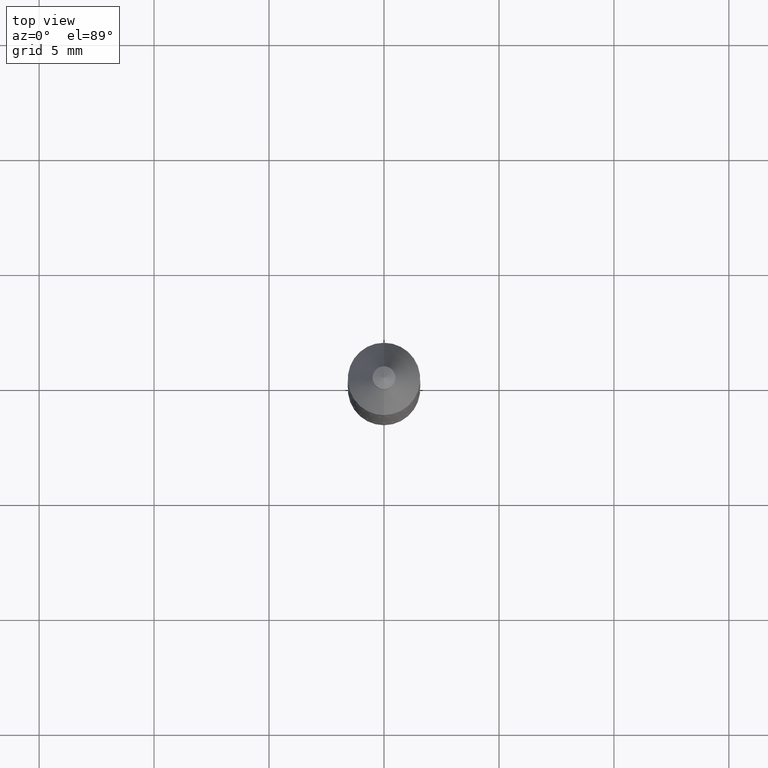
[diagram: clean part render]
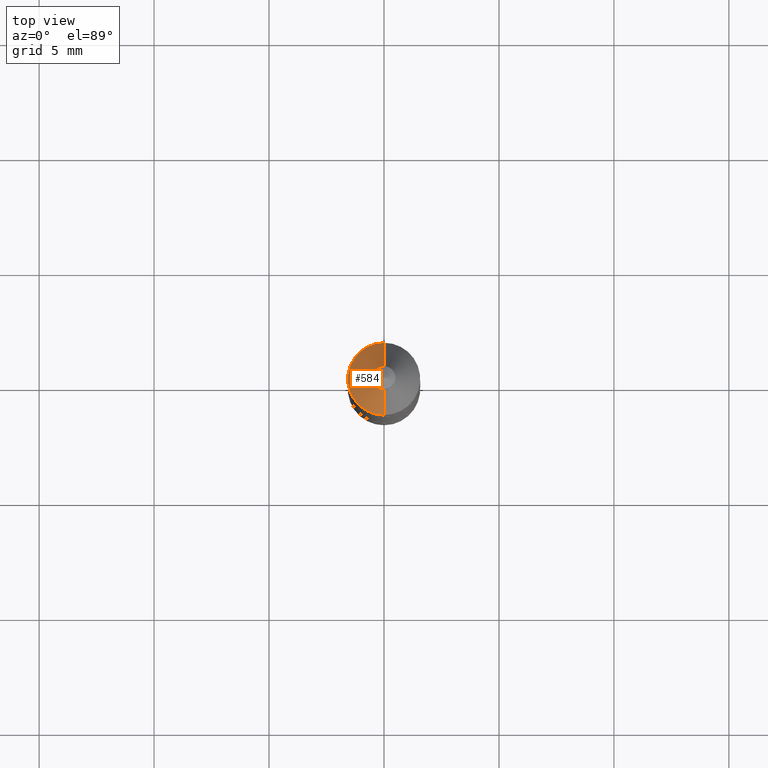
[diagram: same view with one face highlighted and labeled with its STEP entity id]
A machine part, top view. The second image highlights one B-rep face of the part: STEP entity #584.
In plain terms, the highlighted conical surface has half-angle 30 deg.
Its self-contained STEP definition (entity closure, byte-faithful):
#16 = CARTESIAN_POINT ( 'NONE',  ( 1.351518105560852410E-16, 0.01970000000000198329, 0.5687999999999998613 ) ) ;
#29 = EDGE_CURVE ( 'NONE', #83, #495, #390, .T. ) ;
#50 = EDGE_CURVE ( 'NONE', #408, #609, #232, .T. ) ;
#56 = ORIENTED_EDGE ( 'NONE', *, *, #569, .F. ) ;
#83 = VERTEX_POINT ( 'NONE', #125 ) ;
#110 = AXIS2_PLACEMENT_3D ( 'NONE', #395, #131, #388 ) ;
#125 = CARTESIAN_POINT ( 'NONE',  ( 1.351518105560847726E-16, 0.01970000000000198329, 0.5687999999999998613 ) ) ;
#127 = FACE_OUTER_BOUND ( 'NONE', #424, .T. ) ;
#130 = ORIENTED_EDGE ( 'NONE', *, *, #462, .T. ) ;
#131 = DIRECTION ( 'NONE',  ( -2.411471369612255613E-29, 3.540167603029431901E-15, 1.000000000000000000 ) ) ;
#136 = VECTOR ( 'NONE', #238, 39.37007874015748143 ) ;
#176 = DIRECTION ( 'NONE',  ( 3.430248998885748032E-15, 0.4999999999999914513, -0.8660254037844434816 ) ) ;
#198 = CONICAL_SURFACE ( 'NONE', #681, 0.01969999999999998488, 0.5235987755982925984 ) ;
#199 = ORIENTED_EDGE ( 'NONE', *, *, #50, .F. ) ;
#222 = CIRCLE ( 'NONE', #110, 0.06200000000000000649 ) ;
#232 = LINE ( 'NONE', #550, #136 ) ;
#238 = DIRECTION ( 'NONE',  ( -3.491481338843074191E-15, -0.4999999999999976685, -0.8660254037844400399 ) ) ;
#388 = DIRECTION ( 'NONE',  ( -6.982962677686265922E-15, -1.000000000000000000, 3.304654831045479413E-15 ) ) ;
#390 = LINE ( 'NONE', #16, #622 ) ;
#395 = CARTESIAN_POINT ( 'NONE',  ( -1.204927907478374845E-29, 1.740009225608063244E-15, 0.4955342508398353774 ) ) ;
#404 = DIRECTION ( 'NONE',  ( -6.982962677686265133E-15, -1.000000000000000000, 3.466812174700844249E-15 ) ) ;
#405 = AXIS2_PLACEMENT_3D ( 'NONE', #547, #442, #611 ) ;
#408 = VERTEX_POINT ( 'NONE', #446 ) ;
#424 = EDGE_LOOP ( 'NONE', ( #56, #701, #130, #199 ) ) ;
#442 = DIRECTION ( 'NONE',  ( -2.411471369612255613E-29, 3.540167603029431901E-15, 1.000000000000000000 ) ) ;
#446 = CARTESIAN_POINT ( 'NONE',  ( -1.375643647504331674E-16, -0.01969999999999798648, 0.5687999999999999723 ) ) ;
#462 = EDGE_CURVE ( 'NONE', #495, #609, #222, .T. ) ;
#494 = CARTESIAN_POINT ( 'NONE',  ( 4.253508758618278662E-16, 0.06200000000000175510, 0.4955342508398351553 ) ) ;
#495 = VERTEX_POINT ( 'NONE', #494 ) ;
#501 = CARTESIAN_POINT ( 'NONE',  ( -1.381606163951305151E-29, 1.999382257196558882E-15, 0.5687999999999999723 ) ) ;
#512 = DIRECTION ( 'NONE',  ( 2.411471369612255613E-29, -3.540167603029431901E-15, -1.000000000000000000 ) ) ;
#547 = CARTESIAN_POINT ( 'NONE',  ( -1.381606163951305151E-29, 1.999382257196558882E-15, 0.5687999999999999723 ) ) ;
#550 = CARTESIAN_POINT ( 'NONE',  ( -1.375643647504331674E-16, -0.01969999999999798648, 0.5687999999999999723 ) ) ;
#569 = EDGE_CURVE ( 'NONE', #83, #408, #673, .T. ) ;
#584 = ADVANCED_FACE ( 'NONE', ( #127 ), #198, .T. ) ;
#609 = VERTEX_POINT ( 'NONE', #678 ) ;
#611 = DIRECTION ( 'NONE',  ( -6.982962677686265133E-15, -1.000000000000000000, 3.466812174700844249E-15 ) ) ;
#622 = VECTOR ( 'NONE', #176, 39.37007874015748854 ) ;
#673 = CIRCLE ( 'NONE', #405, 0.01969999999999998488 ) ;
#678 = CARTESIAN_POINT ( 'NONE',  ( -4.329436860165605938E-16, -0.06199999999999826483, 0.4955342508398355439 ) ) ;
#681 = AXIS2_PLACEMENT_3D ( 'NONE', #501, #512, #404 ) ;
#701 = ORIENTED_EDGE ( 'NONE', *, *, #29, .T. ) ;